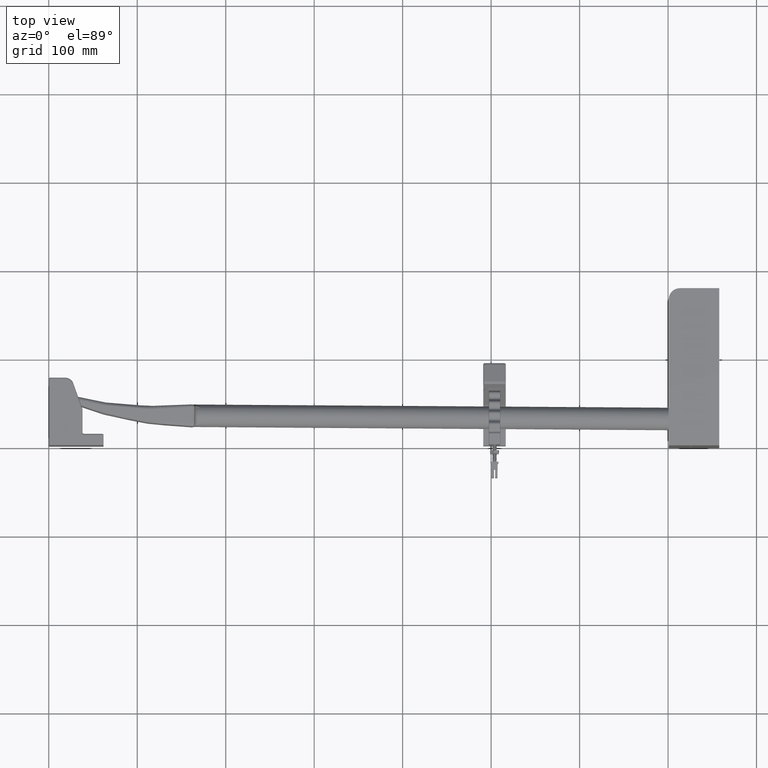
[diagram: clean part render]
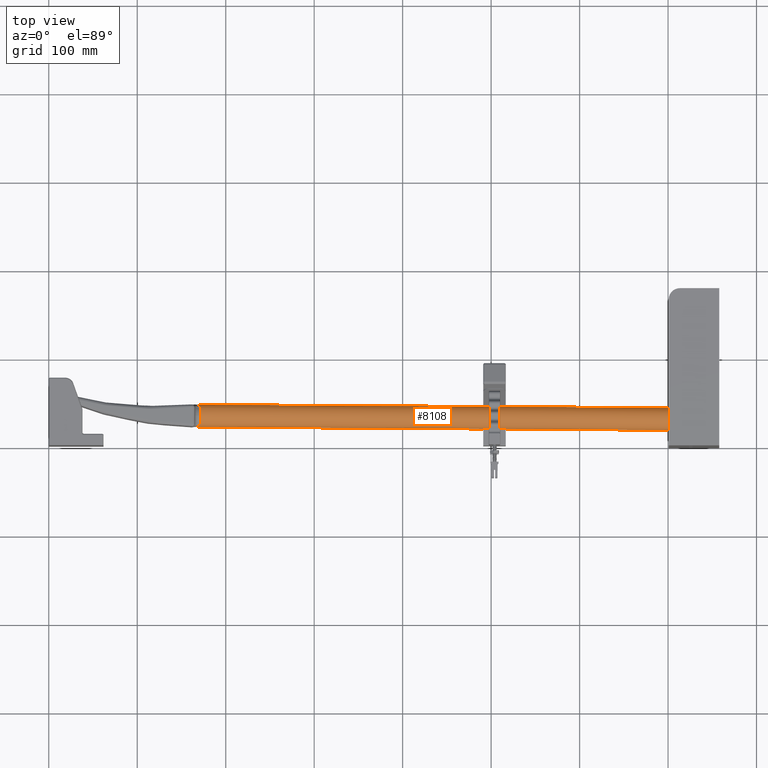
[diagram: same view with one face highlighted and labeled with its STEP entity id]
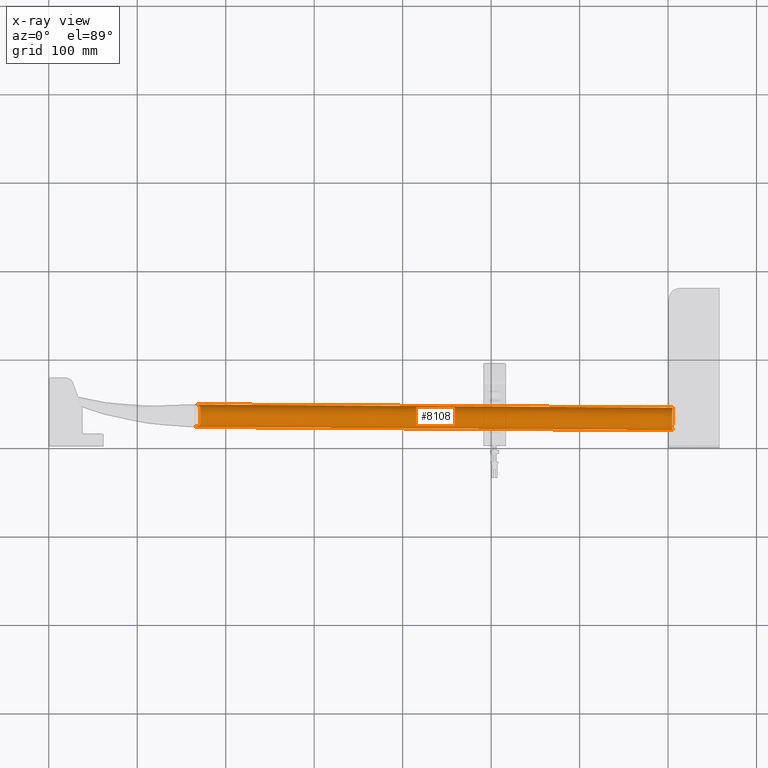
[diagram: x-ray of the same camera — body ghosted, the highlighted face saturated]
A machine part, top view. The second image highlights one B-rep face of the part: STEP entity #8108.
The next image is the same camera in x-ray: the body ghosted, the highlighted face saturated — about 0% of this face is hidden behind the body in this view.
In plain terms, the highlighted cylindrical surface (edge-blend (fillet) strip) has radius 12.7 mm, axis along (1, -0.0067, 0).
Its self-contained STEP definition (entity closure, byte-faithful):
#4535 = EDGE_CURVE ( 'NONE', #10138, #10137, #27864, .T. ) ;
#4823 = EDGE_CURVE ( 'NONE', #10157, #10158, #27987, .T. ) ;
#4837 = EDGE_CURVE ( 'NONE', #10166, #10165, #27992, .T. ) ;
#4979 = EDGE_CURVE ( 'NONE', #10137, #10219, #28081, .T. ) ;
#4981 = EDGE_CURVE ( 'NONE', #10157, #10218, #36984, .T. ) ;
#4983 = EDGE_CURVE ( 'NONE', #10218, #10138, #36985, .T. ) ;
#4986 = EDGE_CURVE ( 'NONE', #10220, #10166, #36986, .T. ) ;
#4988 = EDGE_CURVE ( 'NONE', #10222, #10158, #36987, .T. ) ;
#4991 = EDGE_CURVE ( 'NONE', #10219, #10220, #36988, .T. ) ;
#4993 = EDGE_CURVE ( 'NONE', #10165, #10221, #36989, .T. ) ;
#4998 = EDGE_CURVE ( 'NONE', #10221, #10222, #28084, .T. ) ;
#7681 = EDGE_LOOP ( 'NONE', ( #11128, #11129, #11130, #11131, #11132, #11133, #11134, #11135, #11136, #11137, #11138 ) ) ;
#8108 = ADVANCED_FACE ( 'NONE', ( #40645 ), #40650, .T. ) ;
#10137 = VERTEX_POINT ( 'NONE', #17878 ) ;
#10138 = VERTEX_POINT ( 'NONE', #17879 ) ;
#10157 = VERTEX_POINT ( 'NONE', #17914 ) ;
#10158 = VERTEX_POINT ( 'NONE', #17916 ) ;
#10165 = VERTEX_POINT ( 'NONE', #17930 ) ;
#10166 = VERTEX_POINT ( 'NONE', #17931 ) ;
#10218 = VERTEX_POINT ( 'NONE', #18022 ) ;
#10219 = VERTEX_POINT ( 'NONE', #18025 ) ;
#10220 = VERTEX_POINT ( 'NONE', #18028 ) ;
#10221 = VERTEX_POINT ( 'NONE', #18030 ) ;
#10222 = VERTEX_POINT ( 'NONE', #18032 ) ;
#11128 = ORIENTED_EDGE ( 'NONE', *, *, #4823, .F. ) ;
#11129 = ORIENTED_EDGE ( 'NONE', *, *, #4981, .T. ) ;
#11130 = ORIENTED_EDGE ( 'NONE', *, *, #4983, .T. ) ;
#11131 = ORIENTED_EDGE ( 'NONE', *, *, #4535, .T. ) ;
#11132 = ORIENTED_EDGE ( 'NONE', *, *, #4979, .T. ) ;
#11133 = ORIENTED_EDGE ( 'NONE', *, *, #4991, .T. ) ;
#11134 = ORIENTED_EDGE ( 'NONE', *, *, #4986, .T. ) ;
#11135 = ORIENTED_EDGE ( 'NONE', *, *, #4837, .T. ) ;
#11136 = ORIENTED_EDGE ( 'NONE', *, *, #4993, .T. ) ;
#11137 = ORIENTED_EDGE ( 'NONE', *, *, #4998, .T. ) ;
#11138 = ORIENTED_EDGE ( 'NONE', *, *, #4988, .T. ) ;
#13191 = AXIS2_PLACEMENT_3D ( 'NONE', #32631, #32632, #32633 ) ;
#17878 = CARTESIAN_POINT ( 'NONE',  ( 21.99999999999997200, 1.365923996832131600E-015, -0.5000000000000000000 ) ) ;
#17879 = CARTESIAN_POINT ( 'NONE',  ( 22.00000000000000000, 0.3333333333333340400, -0.3726779962499661100 ) ) ;
#17914 = CARTESIAN_POINT ( 'NONE',  ( 22.24295462100601000, 0.5000000000000018900, -9.331250580956668400E-016 ) ) ;
#17916 = CARTESIAN_POINT ( 'NONE',  ( 0.9785533905932419800, 0.5000000000000000000, 7.282208280401382900E-017 ) ) ;
#17930 = CARTESIAN_POINT ( 'NONE',  ( 0.9785533905932556300, -0.5000000000000000000, -1.437262337451565900E-017 ) ) ;
#17931 = CARTESIAN_POINT ( 'NONE',  ( 22.24940978952211500, -0.4999999999999980600, 3.811439876551324300E-020 ) ) ;
#18022 = CARTESIAN_POINT ( 'NONE',  ( 22.24334691355886700, 0.4999409714679727800, -0.007682776038626323200 ) ) ;
#18025 = CARTESIAN_POINT ( 'NONE',  ( 21.99999999999997200, -0.3333333333333332600, -0.3726779962499642800 ) ) ;
#18028 = CARTESIAN_POINT ( 'NONE',  ( 22.24944262069037400, -0.4999995857705256700, -0.0006436064803099383200 ) ) ;
#18030 = CARTESIAN_POINT ( 'NONE',  ( 0.9999999999999685800, -0.4166666666666673500, -0.2763853991962833500 ) ) ;
#18032 = CARTESIAN_POINT ( 'NONE',  ( 0.9999999999999992200, 0.4166666666666666900, -0.2763853991962834700 ) ) ;
#27864 = CIRCLE ( 'NONE', #13191, 0.5000000000000000000 ) ;
#27985 = VECTOR ( 'NONE', #36153, 39.37007874015748100 ) ;
#27987 = LINE ( 'NONE', #36152, #27985 ) ;
#27992 = LINE ( 'NONE', #36198, #27994 ) ;
#27994 = VECTOR ( 'NONE', #36200, 39.37007874015748100 ) ;
#28081 = CIRCLE ( 'NONE', #34821, 0.5000000000000000000 ) ;
#28084 = CIRCLE ( 'NONE', #34820, 0.5000000000000000000 ) ;
#32631 = CARTESIAN_POINT ( 'NONE',  ( 21.99999999999997200, 1.365923996832131600E-015, 3.184608569459209100E-031 ) ) ;
#32632 = DIRECTION ( 'NONE',  ( -1.000000000000000000, 9.726506201076963400E-035, -0.0000000000000000000 ) ) ;
#32633 = DIRECTION ( 'NONE',  ( 0.0000000000000000000, -8.881784197001252300E-016, -1.000000000000000000 ) ) ;
#34820 = AXIS2_PLACEMENT_3D ( 'NONE', #36556, #36558, #36559 ) ;
#34821 = AXIS2_PLACEMENT_3D ( 'NONE', #36478, #36486, #36487 ) ;
#35191 = AXIS2_PLACEMENT_3D ( 'NONE', #62961, #62962, #62957 ) ;
#36152 = CARTESIAN_POINT ( 'NONE',  ( 22.25000000000000400, 0.5000000000000018900, 6.123233995736766000E-017 ) ) ;
#36153 = DIRECTION ( 'NONE',  ( -1.000000000000000000, -9.107298248878238500E-017, 0.0000000000000000000 ) ) ;
#36198 = CARTESIAN_POINT ( 'NONE',  ( 22.25000000000000400, -0.4999999999999980600, 0.0000000000000000000 ) ) ;
#36200 = DIRECTION ( 'NONE',  ( -1.000000000000000000, -9.107298248878238500E-017, 0.0000000000000000000 ) ) ;
#36478 = CARTESIAN_POINT ( 'NONE',  ( 21.99999999999997200, 1.365923996832131600E-015, 3.184608569459209100E-031 ) ) ;
#36482 = CARTESIAN_POINT ( 'NONE',  ( 22.24334691355886700, 0.4999409714679727800, -0.007682776038626323200 ) ) ;
#36485 = CARTESIAN_POINT ( 'NONE',  ( 22.24295462100601000, 0.5000000000000018900, -9.331250580956668400E-016 ) ) ;
#36486 = DIRECTION ( 'NONE',  ( -1.000000000000000000, 9.726506201076963400E-035, -0.0000000000000000000 ) ) ;
#36487 = DIRECTION ( 'NONE',  ( 0.0000000000000000000, 0.0000000000000000000, -1.000000000000000000 ) ) ;
#36488 = CARTESIAN_POINT ( 'NONE',  ( 22.24944262069037400, -0.4999995857705256700, -0.0006436064803099383200 ) ) ;
#36489 = CARTESIAN_POINT ( 'NONE',  ( 22.24295462100601000, 0.5000000000000018900, -0.002560925346209359300 ) ) ;
#36490 = CARTESIAN_POINT ( 'NONE',  ( 22.24308534123502000, 0.4999803261458436500, -0.005121850692417695900 ) ) ;
#36491 = CARTESIAN_POINT ( 'NONE',  ( 22.24334691355886700, 0.4999409714679727800, -0.007682776038626323200 ) ) ;
#36492 = CARTESIAN_POINT ( 'NONE',  ( 0.9999999999999992200, 0.4166666666666666900, -0.2763853991962834700 ) ) ;
#36493 = CARTESIAN_POINT ( 'NONE',  ( 22.23000175621054800, 0.4997041236222014600, -0.02309516623598451700 ) ) ;
#36494 = CARTESIAN_POINT ( 'NONE',  ( 22.21669255573136000, 0.4987576629040775300, -0.03848191009265111000 ) ) ;
#36495 = CARTESIAN_POINT ( 'NONE',  ( 22.19024773804931200, 0.4954180476264453100, -0.06928940608720531000 ) ) ;
#36496 = CARTESIAN_POINT ( 'NONE',  ( 22.17708408131483500, 0.4930161342690466100, -0.08474301999025422900 ) ) ;
#36497 = CARTESIAN_POINT ( 'NONE',  ( 22.13839040142938300, 0.4835888113695802600, -0.1308702176387094600 ) ) ;
#36498 = CARTESIAN_POINT ( 'NONE',  ( 22.11352905476032400, 0.4744037788817195800, -0.1613903821415658700 ) ) ;
#36499 = CARTESIAN_POINT ( 'NONE',  ( 22.07886483679903500, 0.4552405391296522900, -0.2074427674063592000 ) ) ;
#36500 = CARTESIAN_POINT ( 'NONE',  ( 22.06771726403592000, 0.4479141379956933500, -0.2228962845273233200 ) ) ;
#36501 = CARTESIAN_POINT ( 'NONE',  ( 22.04690690212191500, 0.4311310865868964200, -0.2538421061426025500 ) ) ;
#36502 = CARTESIAN_POINT ( 'NONE',  ( 22.03735557323422600, 0.4217791183978411000, -0.2691551079854737100 ) ) ;
#36503 = CARTESIAN_POINT ( 'NONE',  ( 22.02483652693850400, 0.4060002078325928300, -0.2919749226520587100 ) ) ;
#36504 = CARTESIAN_POINT ( 'NONE',  ( 22.02096769810911400, 0.4004468300014731900, -0.2995569154390095900 ) ) ;
#36505 = CARTESIAN_POINT ( 'NONE',  ( 22.01398676394912700, 0.3886628349959964100, -0.3146954240824567700 ) ) ;
#36506 = CARTESIAN_POINT ( 'NONE',  ( 22.01086261461618300, 0.3823940402993334400, -0.3222926763016676900 ) ) ;
#36507 = CARTESIAN_POINT ( 'NONE',  ( 22.00311658178635500, 0.3628321911339852400, -0.3445923477000997200 ) ) ;
#36508 = CARTESIAN_POINT ( 'NONE',  ( 22.00000000000000400, 0.3487318254413260300, -0.3589051662081806900 ) ) ;
#36509 = CARTESIAN_POINT ( 'NONE',  ( 22.00000000000000000, 0.3333333333333340400, -0.3726779962499661100 ) ) ;
#36510 = CARTESIAN_POINT ( 'NONE',  ( 21.99999999999997200, -0.3333333333333332600, -0.3726779962499642800 ) ) ;
#36511 = CARTESIAN_POINT ( 'NONE',  ( 22.24942082026859700, -0.4999998608549038300, -0.0004299012434272572000 ) ) ;
#36512 = CARTESIAN_POINT ( 'NONE',  ( 22.24940978952229600, -0.4999999999999980600, -0.0002148144826507426400 ) ) ;
#36513 = CARTESIAN_POINT ( 'NONE',  ( 22.24940978952211500, -0.4999999999999980600, 3.811439876551324300E-020 ) ) ;
#36514 = CARTESIAN_POINT ( 'NONE',  ( 0.9785533905932556300, -0.5000000000000000000, -1.437262337451565900E-017 ) ) ;
#36515 = CARTESIAN_POINT ( 'NONE',  ( 0.9999999999999992200, 0.4303346969948370600, -0.2557800681864019200 ) ) ;
#36516 = CARTESIAN_POINT ( 'NONE',  ( 0.9983561383558543500, 0.4422751848501143600, -0.2344867368853284200 ) ) ;
#36517 = CARTESIAN_POINT ( 'NONE',  ( 0.9949782185183513300, 0.4577760313660267400, -0.2014669881993157200 ) ) ;
#36518 = CARTESIAN_POINT ( 'NONE',  ( 0.9936936496566946000, 0.4625386923160023100, -0.1902797481188974700 ) ) ;
#36519 = CARTESIAN_POINT ( 'NONE',  ( 0.9910113705099139500, 0.4712569796586589800, -0.1675269636702907700 ) ) ;
#36520 = CARTESIAN_POINT ( 'NONE',  ( 0.9896089203241514900, 0.4752239127237172200, -0.1559218876165938700 ) ) ;
#36521 = CARTESIAN_POINT ( 'NONE',  ( 0.9855417265983481600, 0.4858006174623382100, -0.1208112955093779600 ) ) ;
#36522 = CARTESIAN_POINT ( 'NONE',  ( 0.9830466729578795100, 0.4910798960140901300, -0.09711015283327474600 ) ) ;
#36523 = CARTESIAN_POINT ( 'NONE',  ( 0.9795511614049149400, 0.4981798109153375300, -0.04905835350753228600 ) ) ;
#36524 = CARTESIAN_POINT ( 'NONE',  ( 0.9785533905932417600, 0.5000000000000000000, -0.02469496449318392100 ) ) ;
#36525 = CARTESIAN_POINT ( 'NONE',  ( 0.9785533905932419800, 0.5000000000000000000, 7.282208280401382900E-017 ) ) ;
#36526 = CARTESIAN_POINT ( 'NONE',  ( 21.99999999999997900, -0.3490247839500377800, -0.3586431361521514300 ) ) ;
#36527 = CARTESIAN_POINT ( 'NONE',  ( 22.00323363925111400, -0.3633688749871857300, -0.3440475469359318100 ) ) ;
#36528 = CARTESIAN_POINT ( 'NONE',  ( 22.01124963075557900, -0.3832404498436132700, -0.3212914114463458800 ) ) ;
#36529 = CARTESIAN_POINT ( 'NONE',  ( 22.01447770878999700, -0.3895956810688838700, -0.3135447339925618300 ) ) ;
#36530 = CARTESIAN_POINT ( 'NONE',  ( 22.02167948504195700, -0.4015250845279334500, -0.2981152485479898200 ) ) ;
#36531 = CARTESIAN_POINT ( 'NONE',  ( 22.02566795894124500, -0.4071413785455899000, -0.2903864324621168200 ) ) ;
#36532 = CARTESIAN_POINT ( 'NONE',  ( 22.03856672422376000, -0.4230837931139914100, -0.2671210084074158200 ) ) ;
#36533 = CARTESIAN_POINT ( 'NONE',  ( 22.04839855172377500, -0.4325113916879141900, -0.2515040701923604300 ) ) ;
#36534 = CARTESIAN_POINT ( 'NONE',  ( 22.06980582871623400, -0.4493885901248918000, -0.2199324812952876400 ) ) ;
#36535 = CARTESIAN_POINT ( 'NONE',  ( 22.08122123075969900, -0.4567031288114951600, -0.2042235594517664600 ) ) ;
#36536 = CARTESIAN_POINT ( 'NONE',  ( 22.11675365027506100, -0.4758058803917736300, -0.1573175279174161800 ) ) ;
#36537 = CARTESIAN_POINT ( 'NONE',  ( 22.14221333637492600, -0.4848612189338003000, -0.1262138610993288900 ) ) ;
#36538 = CARTESIAN_POINT ( 'NONE',  ( 22.19501191682276400, -0.4969804480129258500, -0.06348838202728748800 ) ) ;
#36539 = CARTESIAN_POINT ( 'NONE',  ( 22.22231799905973300, -0.4999592691596044800, -0.03196443586318710500 ) ) ;
#36540 = CARTESIAN_POINT ( 'NONE',  ( 22.24944262069037400, -0.4999995857705256700, -0.0006436064803099383200 ) ) ;
#36542 = CARTESIAN_POINT ( 'NONE',  ( 0.9785533905932557500, -0.5000000000000001100, -0.02470245854345792500 ) ) ;
#36543 = CARTESIAN_POINT ( 'NONE',  ( 0.9795507024572826000, -0.4981805664856534000, -0.04904527500002225200 ) ) ;
#36544 = CARTESIAN_POINT ( 'NONE',  ( 0.9830436828916479000, -0.4910861457405465400, -0.09707581205165888300 ) ) ;
#36545 = CARTESIAN_POINT ( 'NONE',  ( 0.9855366328427254100, -0.4858115672705708400, -0.1207637896298320200 ) ) ;
#36546 = CARTESIAN_POINT ( 'NONE',  ( 0.9896005243361967200, -0.4752468900223053000, -0.1558511676858364000 ) ) ;
#36547 = CARTESIAN_POINT ( 'NONE',  ( 0.9910046062181636600, -0.4712773352028198900, -0.1674704072245623000 ) ) ;
#36548 = CARTESIAN_POINT ( 'NONE',  ( 0.9936893458592374100, -0.4625543049837697000, -0.1902424214333210100 ) ) ;
#36549 = CARTESIAN_POINT ( 'NONE',  ( 0.9949750328940196700, -0.4577890888078174300, -0.2014377410942873000 ) ) ;
#36550 = CARTESIAN_POINT ( 'NONE',  ( 0.9983555669290966600, -0.4422809242208163800, -0.2344773710724001900 ) ) ;
#36551 = CARTESIAN_POINT ( 'NONE',  ( 0.9999999999999684700, -0.4303359478457143300, -0.2557781824577534100 ) ) ;
#36552 = CARTESIAN_POINT ( 'NONE',  ( 0.9999999999999685800, -0.4166666666666673500, -0.2763853991962833500 ) ) ;
#36556 = CARTESIAN_POINT ( 'NONE',  ( 0.9999999999999992200, -1.912293595564984100E-015, -4.246144759278944900E-031 ) ) ;
#36558 = DIRECTION ( 'NONE',  ( 1.000000000000000000, 9.107298248878237200E-017, -0.0000000000000000000 ) ) ;
#36559 = DIRECTION ( 'NONE',  ( 0.0000000000000000000, -1.000000000000000000, 0.0000000000000000000 ) ) ;
#36984 = B_SPLINE_CURVE_WITH_KNOTS ( 'NONE', 3,
 ( #36485, #36489, #36490, #36491 ),
 .UNSPECIFIED., .F., .F.,
 ( 4, 4 ),
 ( 0.0001951425113811401300, 0.0003902850227622222100 ),
 .UNSPECIFIED. ) ;
#36985 = B_SPLINE_CURVE_WITH_KNOTS ( 'NONE', 3,
 ( #36482, #36493, #36494, #36495, #36496, #36497, #36498, #36499, #36500, #36501, #36502, #36503, #36504, #36505, #36506, #36507, #36508, #36509 ),
 .UNSPECIFIED., .F., .F.,
 ( 4, 2, 2, 2, 2, 2, 2, 2, 4 ),
 ( 0.0002351542714804808100, 0.001786904878840579500, 0.003338655486200678100, 0.006442156700920662800, 0.007993907308280560600, 0.009545657915640456600, 0.01032153321932040300, 0.01109740852300035100, 0.01264915913036024400 ),
 .UNSPECIFIED. ) ;
#36986 = B_SPLINE_CURVE_WITH_KNOTS ( 'NONE', 3,
 ( #36488, #36511, #36512, #36513 ),
 .UNSPECIFIED., .F., .F.,
 ( 4, 4 ),
 ( 1.997065503960872300E-014, 1.634760458060131200E-005 ),
 .UNSPECIFIED. ) ;
#36987 = B_SPLINE_CURVE_WITH_KNOTS ( 'NONE', 3,
 ( #36492, #36515, #36516, #36517, #36518, #36519, #36520, #36521, #36522, #36523, #36524, #36525 ),
 .UNSPECIFIED., .F., .F.,
 ( 4, 2, 2, 2, 2, 4 ),
 ( 0.0000000000000000000, 0.001860697265574109900, 0.002791045898361165200, 0.003721394531148219900, 0.005582091796722332200, 0.007442789062296444900 ),
 .UNSPECIFIED. ) ;
#36988 = B_SPLINE_CURVE_WITH_KNOTS ( 'NONE', 3,
 ( #36510, #36526, #36527, #36528, #36529, #36530, #36531, #36532, #36533, #36534, #36535, #36536, #36537, #36538, #36539, #36540 ),
 .UNSPECIFIED., .F., .F.,
 ( 4, 2, 2, 2, 2, 2, 2, 4 ),
 ( 0.0000000000000000000, 0.001578619010320423000, 0.002367928515480634400, 0.003157238020640845900, 0.004735857030961131700, 0.006314476041281417800, 0.009471714061921796700, 0.01262895208256217500 ),
 .UNSPECIFIED. ) ;
#36989 = B_SPLINE_CURVE_WITH_KNOTS ( 'NONE', 3,
 ( #36514, #36542, #36543, #36544, #36545, #36546, #36547, #36548, #36549, #36550, #36551, #36552 ),
 .UNSPECIFIED., .F., .F.,
 ( 4, 2, 2, 2, 2, 4 ),
 ( 0.007442789062296462300, 0.009304050983829343900, 0.01116531290536222500, 0.01209594386612866300, 0.01302657482689510400, 0.01488783674842798400 ),
 .UNSPECIFIED. ) ;
#40645 = FACE_OUTER_BOUND ( 'NONE', #7681, .T. ) ;
#40650 = CYLINDRICAL_SURFACE ( 'NONE', #35191, 0.5000000000000000000 ) ;
#62957 = DIRECTION ( 'NONE',  ( 0.0000000000000000000, -1.000000000000000000, 0.0000000000000000000 ) ) ;
#62961 = CARTESIAN_POINT ( 'NONE',  ( 22.25000000000000400, 1.912293595564984100E-015, 0.0000000000000000000 ) ) ;
#62962 = DIRECTION ( 'NONE',  ( -1.000000000000000000, -9.107298248878237200E-017, 0.0000000000000000000 ) ) ;